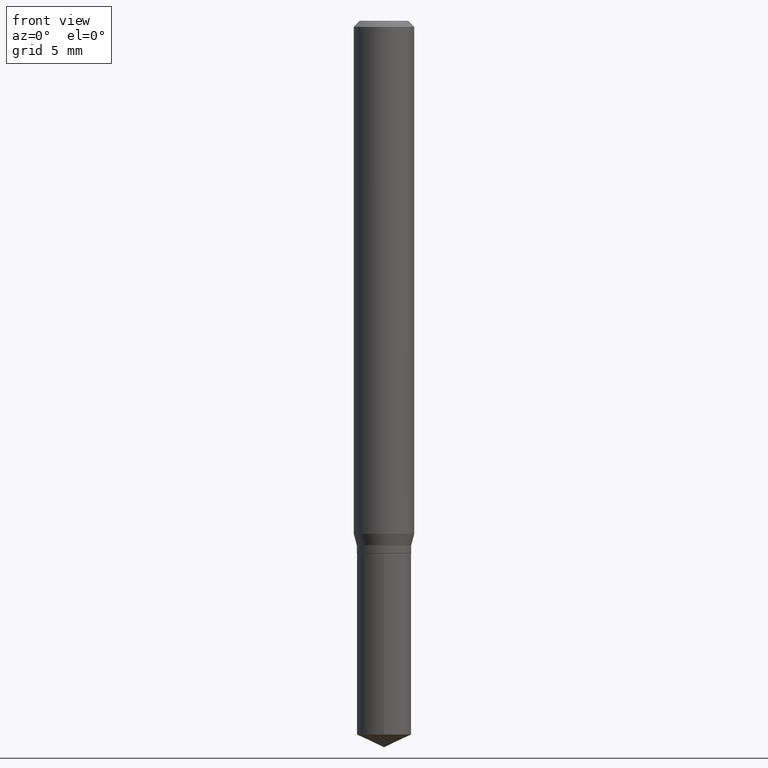
[diagram: clean part render]
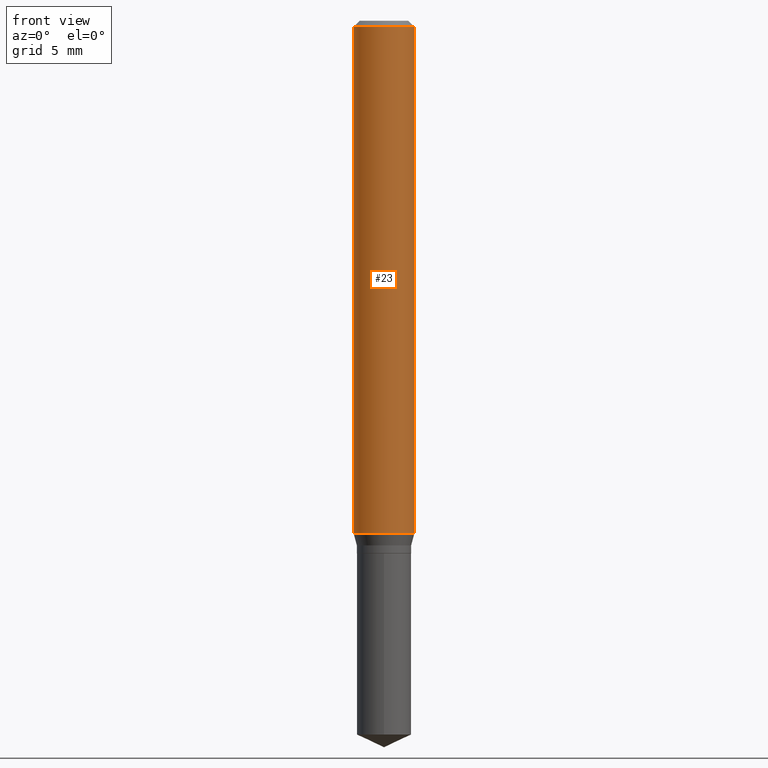
[diagram: same view with one face highlighted and labeled with its STEP entity id]
A machine part, front view. The second image highlights one B-rep face of the part: STEP entity #23.
In plain terms, the highlighted cylindrical surface (edge-blend (fillet) strip) has radius 1.5875 mm, axis along (-0, 0, 1).
Its self-contained STEP definition (entity closure, byte-faithful):
#6 = VECTOR ( 'NONE', #177, 39.37007874015748143 ) ;
#23 = ADVANCED_FACE ( 'NONE', ( #53 ), #168, .T. ) ;
#32 = CARTESIAN_POINT ( 'NONE',  ( 0.06250000000000012490, -4.135013284788742571E-15, -1.059314874831558839 ) ) ;
#39 = CARTESIAN_POINT ( 'NONE',  ( -0.06250000000000012490, -3.254488907583286707E-15, -1.059314874831558839 ) ) ;
#40 = EDGE_LOOP ( 'NONE', ( #73, #426, #363, #157 ) ) ;
#53 = FACE_OUTER_BOUND ( 'NONE', #40, .T. ) ;
#73 = ORIENTED_EDGE ( 'NONE', *, *, #371, .F. ) ;
#74 = CARTESIAN_POINT ( 'NONE',  ( -0.06250000000000000000, -1.427021607234381037E-15, -0.01250000000000008223 ) ) ;
#81 = CIRCLE ( 'NONE', #221, 0.06250000000000000000 ) ;
#102 = DIRECTION ( 'NONE',  ( -2.445468806185136597E-29, 3.491481338843145583E-15, 1.000000000000000000 ) ) ;
#107 = EDGE_CURVE ( 'NONE', #452, #278, #445, .T. ) ;
#129 = AXIS2_PLACEMENT_3D ( 'NONE', #296, #213, #139 ) ;
#139 = DIRECTION ( 'NONE',  ( 1.000000000000000000, -6.982962677686264344E-15, 0.000000000000000000 ) ) ;
#157 = ORIENTED_EDGE ( 'NONE', *, *, #382, .F. ) ;
#158 = EDGE_CURVE ( 'NONE', #278, #348, #404, .T. ) ;
#168 = CYLINDRICAL_SURFACE ( 'NONE', #305, 0.06250000000000006939 ) ;
#173 = CARTESIAN_POINT ( 'NONE',  ( 0.000000000000000000, 0.000000000000000000, 0.000000000000000000 ) ) ;
#177 = DIRECTION ( 'NONE',  ( -2.445468806185136877E-29, 3.491481338843145188E-15, 1.000000000000000000 ) ) ;
#213 = DIRECTION ( 'NONE',  ( -2.445468806185136597E-29, 3.491481338843145583E-15, 1.000000000000000000 ) ) ;
#221 = AXIS2_PLACEMENT_3D ( 'NONE', #327, #102, #466 ) ;
#236 = LINE ( 'NONE', #292, #6 ) ;
#247 = DIRECTION ( 'NONE',  ( -2.445468806185136597E-29, 3.491481338843145583E-15, 1.000000000000000000 ) ) ;
#249 = VERTEX_POINT ( 'NONE', #74 ) ;
#278 = VERTEX_POINT ( 'NONE', #32 ) ;
#292 = CARTESIAN_POINT ( 'NONE',  ( -0.06250000000000006939, 4.440892098500631092E-16, -3.074334431409319267E-30 ) ) ;
#296 = CARTESIAN_POINT ( 'NONE',  ( 2.590521482328489737E-29, -3.698578117433350112E-15, -1.059314874831558839 ) ) ;
#305 = AXIS2_PLACEMENT_3D ( 'NONE', #173, #247, #462 ) ;
#308 = CARTESIAN_POINT ( 'NONE',  ( 0.06250000000000000000, -4.800786840909312308E-16, -0.01250000000000008223 ) ) ;
#327 = CARTESIAN_POINT ( 'NONE',  ( 3.056836007731440977E-31, -4.364351673553961068E-17, -0.01250000000000008223 ) ) ;
#348 = VERTEX_POINT ( 'NONE', #308 ) ;
#363 = ORIENTED_EDGE ( 'NONE', *, *, #158, .T. ) ;
#371 = EDGE_CURVE ( 'NONE', #452, #249, #236, .T. ) ;
#382 = EDGE_CURVE ( 'NONE', #249, #348, #81, .T. ) ;
#397 = CARTESIAN_POINT ( 'NONE',  ( 0.06250000000000006939, -4.364351673553921624E-16, 3.047610484872463374E-30 ) ) ;
#404 = LINE ( 'NONE', #397, #436 ) ;
#405 = DIRECTION ( 'NONE',  ( -2.445468806185136877E-29, 3.491481338843145188E-15, 1.000000000000000000 ) ) ;
#426 = ORIENTED_EDGE ( 'NONE', *, *, #107, .T. ) ;
#436 = VECTOR ( 'NONE', #405, 39.37007874015748143 ) ;
#445 = CIRCLE ( 'NONE', #129, 0.06250000000000012490 ) ;
#452 = VERTEX_POINT ( 'NONE', #39 ) ;
#462 = DIRECTION ( 'NONE',  ( 1.000000000000000000, -6.982962677686266711E-15, 4.876176775795935793E-29 ) ) ;
#466 = DIRECTION ( 'NONE',  ( 1.000000000000000000, -6.982962677686266711E-15, 0.000000000000000000 ) ) ;